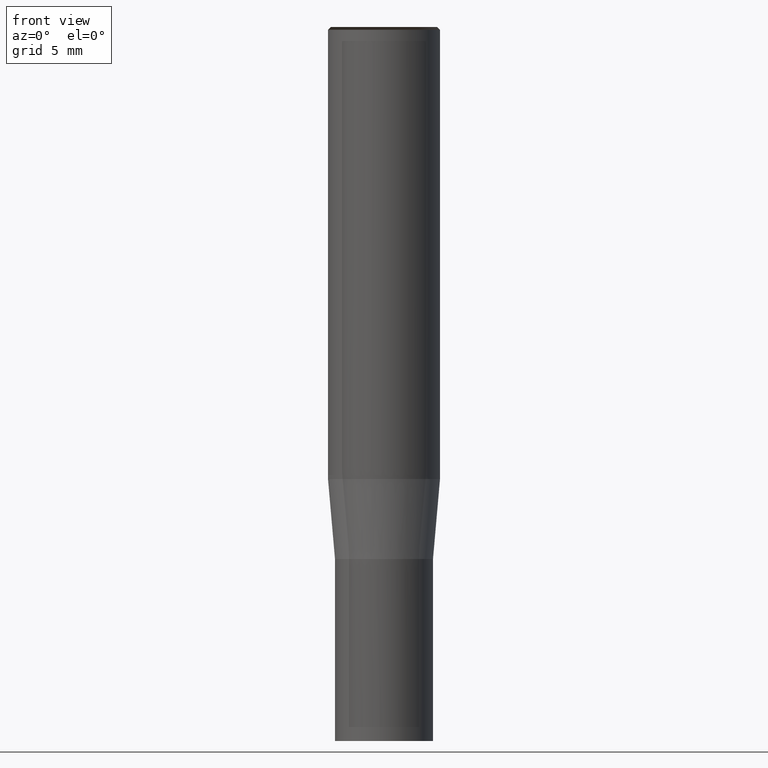
[diagram: clean part render]
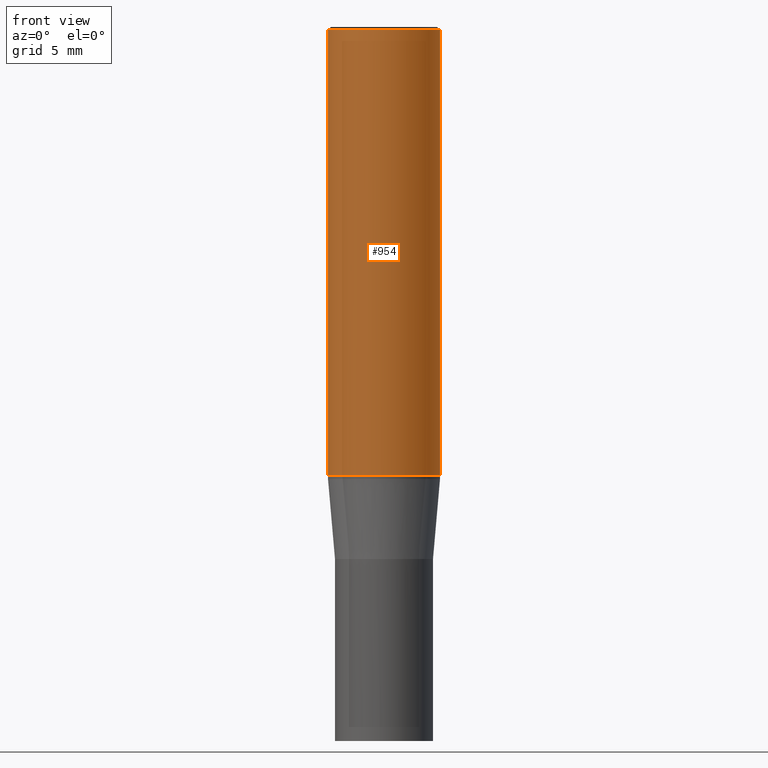
[diagram: same view with one face highlighted and labeled with its STEP entity id]
A machine part, front view. The second image highlights one B-rep face of the part: STEP entity #954.
In plain terms, the highlighted face is a freeform B-spline surface patch.
Its self-contained STEP definition (entity closure, byte-faithful):
#625=CARTESIAN_POINT('',(4.0,0.0,0.0));
#629=CARTESIAN_POINT('',(-4.0,0.0,0.0));
#630=CARTESIAN_POINT('',(4.0,0.0,31.8));
#634=CARTESIAN_POINT('',(-4.0,0.0,31.8));
#644=CARTESIAN_POINT('',(-4.0,-4.0,0.0));
#645=CARTESIAN_POINT('',(0.0,-4.0,0.0));
#646=CARTESIAN_POINT('',(4.0,-4.0,0.0));
#647=CARTESIAN_POINT('',(-4.0,-4.0,31.8));
#648=CARTESIAN_POINT('',(0.0,-4.0,31.8));
#649=CARTESIAN_POINT('',(4.0,-4.0,31.8));
#935=(
BOUNDED_SURFACE()
B_SPLINE_SURFACE(1,2,(
(#629,#644,#645,#646,#625),
(#634,#647,#648,#649,#630)
), .UNSPECIFIED.,.F.,.F.,.F.)
B_SPLINE_SURFACE_WITH_KNOTS((2,2),(3,2,3),(
0.0,1.0),(
0.0,0.5,1.0), .UNSPECIFIED.)
GEOMETRIC_REPRESENTATION_ITEM()
RATIONAL_B_SPLINE_SURFACE(((1.0,0.707106781187,1.0,0.707106781187,1.0),
(1.0,0.707106781187,1.0,0.707106781187,1.0)
))
REPRESENTATION_ITEM('')
SURFACE()
);
#936=(
BOUNDED_CURVE()
B_SPLINE_CURVE(2,(#625,#646,#645,#644,#629),.UNSPECIFIED.,.F.,.F.)
B_SPLINE_CURVE_WITH_KNOTS((3,2,3),
(0.0,0.5,1.0),.UNSPECIFIED.)
CURVE()
GEOMETRIC_REPRESENTATION_ITEM()
RATIONAL_B_SPLINE_CURVE((1.0,0.707106781187,1.0,0.707106781187,1.0))
REPRESENTATION_ITEM('')
);
#937=(
BOUNDED_CURVE()
B_SPLINE_CURVE(1,(#629,#634),.UNSPECIFIED.,.F.,.F.)
B_SPLINE_CURVE_WITH_KNOTS((2,2),
(0.0,1.0),.UNSPECIFIED.)
CURVE()
GEOMETRIC_REPRESENTATION_ITEM()
RATIONAL_B_SPLINE_CURVE((1.0,1.0))
REPRESENTATION_ITEM('')
);
#938=(
BOUNDED_CURVE()
B_SPLINE_CURVE(2,(#634,#647,#648,#649,#630),.UNSPECIFIED.,.F.,.F.)
B_SPLINE_CURVE_WITH_KNOTS((3,2,3),
(0.0,0.5,1.0),.UNSPECIFIED.)
CURVE()
GEOMETRIC_REPRESENTATION_ITEM()
RATIONAL_B_SPLINE_CURVE((1.0,0.707106781187,1.0,0.707106781187,1.0))
REPRESENTATION_ITEM('')
);
#939=(
BOUNDED_CURVE()
B_SPLINE_CURVE(1,(#630,#625),.UNSPECIFIED.,.F.,.F.)
B_SPLINE_CURVE_WITH_KNOTS((2,2),
(0.0,1.0),.UNSPECIFIED.)
CURVE()
GEOMETRIC_REPRESENTATION_ITEM()
RATIONAL_B_SPLINE_CURVE((1.0,1.0))
REPRESENTATION_ITEM('')
);
#940=VERTEX_POINT('',#625);
#941=VERTEX_POINT('',#629);
#942=VERTEX_POINT('',#630);
#943=VERTEX_POINT('',#634);
#944=EDGE_CURVE('',#940,#941,#936,.T.);
#945=EDGE_CURVE('',#941,#943,#937,.T.);
#946=EDGE_CURVE('',#943,#942,#938,.T.);
#947=EDGE_CURVE('',#942,#940,#939,.T.);
#948=ORIENTED_EDGE('',*,*,#944,.T.);
#949=ORIENTED_EDGE('',*,*,#945,.T.);
#950=ORIENTED_EDGE('',*,*,#946,.T.);
#951=ORIENTED_EDGE('',*,*,#947,.T.);
#952=EDGE_LOOP('',(#948,#949,#950,#951));
#953=FACE_OUTER_BOUND('',#952,.T.);
#954=ADVANCED_FACE('',(#953),#935,.T.);